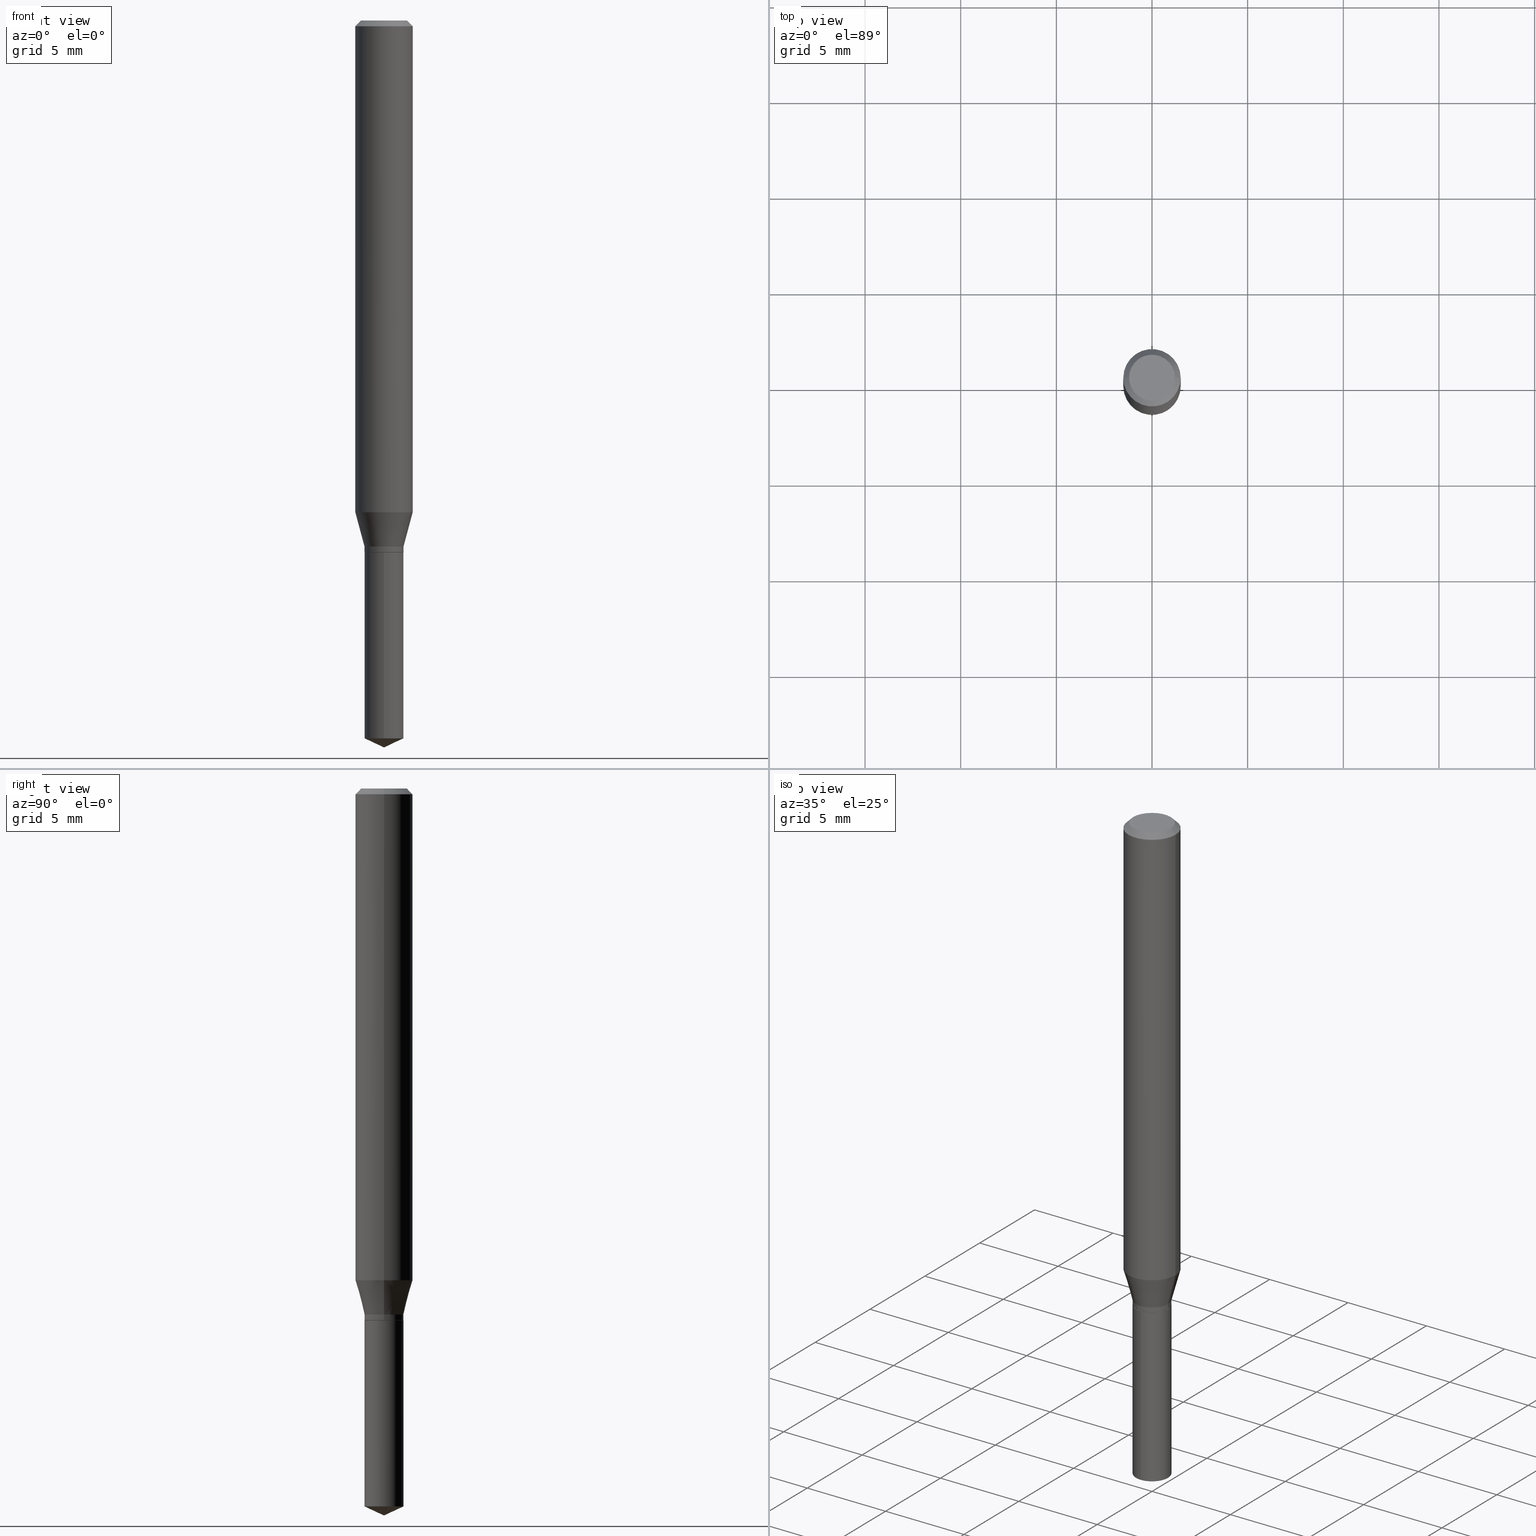
[diagram: canonical four-view strip — front | top / right | iso, engineering-drawing reading convention]
A machine part, canonical four-view strip (front | top / right | iso — engineering-drawing reading convention). The complete STEP part file that produces these views, byte-faithful:
ISO-10303-21;
HEADER;
FILE_DESCRIPTION (( 'STEP AP203' ),
    '1' );
FILE_NAME ('07949.STEP',
    '2024-04-24T07:00:56',
    ( '' ),
    ( '' ),
    'SwSTEP 2.0',
    'SolidWorks 2023',
    '' );
FILE_SCHEMA (( 'CONFIG_CONTROL_DESIGN' ));
ENDSEC;

DATA;
#1 = CC_DESIGN_PERSON_AND_ORGANIZATION_ASSIGNMENT ( #265, #9, ( #440 ) ) ;
#2 = CARTESIAN_POINT ( 'NONE',  ( 2.676565608369631794E-29, -3.821426325363822773E-15, -1.094499999999999806 ) ) ;
#3 = LINE ( 'NONE', #151, #81 ) ;
#4 = DIRECTION ( 'NONE',  ( -2.445458899330790108E-29, 3.491495526022433205E-15, 1.000000000000000000 ) ) ;
#5 = PRODUCT_DEFINITION ( 'UNKNOWN', '', #205, #292 ) ;
#6 = DIRECTION ( 'NONE',  ( -0.2588190451025214611, 5.211531920934550253E-15, 0.9659258262890679791 ) ) ;
#7 = CONICAL_SURFACE ( 'NONE', #229, 84.42940631927426409, 1.134464013796315562 ) ;
#8 = ORIENTED_EDGE ( 'NONE', *, *, #35, .T. ) ;
#9 = PERSON_AND_ORGANIZATION_ROLE ( 'design_owner' ) ;
#10 = EDGE_LOOP ( 'NONE', ( #308, #248 ) ) ;
#11 = DIRECTION ( 'NONE',  ( -0.7071067811865232589, 7.493145998870265808E-15, 0.7071067811865715536 ) ) ;
#12 = ORIENTED_EDGE ( 'NONE', *, *, #158, .F. ) ;
#13 = AXIS2_PLACEMENT_3D ( 'NONE', #235, #193, #118 ) ;
#14 = DIRECTION ( 'NONE',  ( -2.445468806185136597E-29, 3.491481338843145583E-15, 1.000000000000000000 ) ) ;
#15 = CC_DESIGN_PERSON_AND_ORGANIZATION_ASSIGNMENT ( #55, #481, ( #401 ) ) ;
#16 = ORIENTED_EDGE ( 'NONE', *, *, #484, .T. ) ;
#17 = PERSON_AND_ORGANIZATION ( #460, #149 ) ;
#18 = DIRECTION ( 'NONE',  ( 1.000000000000000000, -6.982962677686261189E-15, 0.000000000000000000 ) ) ;
#19 = ORIENTED_EDGE ( 'NONE', *, *, #450, .F. ) ;
#20 = DIRECTION ( 'NONE',  ( 1.000000000000000000, -6.982962677686261189E-15, 0.000000000000000000 ) ) ;
#21 = ADVANCED_FACE ( 'NONE', ( #424 ), #44, .T. ) ;
#22 = DIRECTION ( 'NONE',  ( -2.445468806185136597E-29, 3.491481338843145583E-15, 1.000000000000000000 ) ) ;
#23 = VECTOR ( 'NONE', #11, 39.37007874015748854 ) ;
#24 = ORIENTED_EDGE ( 'NONE', *, *, #259, .T. ) ;
#25 = COORDINATED_UNIVERSAL_TIME_OFFSET ( 5, 0, .BEHIND. ) ;
#26 = DIRECTION ( 'NONE',  ( 0.7071067811865453523, -7.319954787623248157E-15, -0.7071067811865496822 ) ) ;
#27 = LINE ( 'NONE', #97, #216 ) ;
#28 = DIRECTION ( 'NONE',  ( -2.445468806185136597E-29, 3.491481338843145583E-15, 1.000000000000000000 ) ) ;
#29 = EDGE_CURVE ( 'NONE', #459, #395, #189, .T. ) ;
#30 = VECTOR ( 'NONE', #137, 39.37007874015748143 ) ;
#31 = CIRCLE ( 'NONE', #306, 0.04014999999999999819 ) ;
#32 = CC_DESIGN_APPROVAL ( #312, ( #205 ) ) ;
#33 = DIRECTION ( 'NONE',  ( -2.445468806185136597E-29, 3.491481338843145583E-15, 1.000000000000000000 ) ) ;
#34 = DIRECTION ( 'NONE',  ( 1.000000000000000000, -6.982962677686265133E-15, 0.000000000000000000 ) ) ;
#35 = EDGE_CURVE ( 'NONE', #459, #268, #305, .T. ) ;
#36 = DIRECTION ( 'NONE',  ( 6.982962677686265922E-15, 1.000000000000000000, -3.491495526022433599E-15 ) ) ;
#37 = VECTOR ( 'NONE', #246, 39.37007874015748143 ) ;
#38 = CARTESIAN_POINT ( 'NONE',  ( 2.676565608369631794E-29, -3.821426325363822773E-15, -1.094499999999999806 ) ) ;
#39 = APPLICATION_CONTEXT ( 'configuration controlled 3d designs of mechanical parts and assemblies' ) ;
#40 =( CONVERSION_BASED_UNIT ( 'INCH', #304 ) LENGTH_UNIT ( ) NAMED_UNIT ( #98 ) );
#41 = EDGE_CURVE ( 'NONE', #140, #110, #279, .T. ) ;
#42 = COORDINATED_UNIVERSAL_TIME_OFFSET ( 5, 0, .BEHIND. ) ;
#43 = ORIENTED_EDGE ( 'NONE', *, *, #456, .T. ) ;
#44 = CONICAL_SURFACE ( 'NONE', #232, 0.04014999999999999819, 0.2617993877991501850 ) ;
#45 = APPROVAL_STATUS ( 'not_yet_approved' ) ;
#46 = CARTESIAN_POINT ( 'NONE',  ( -2.803659515090768085E-16, -0.04015000000000382152, -1.094499999999999806 ) ) ;
#47 = ORIENTED_EDGE ( 'NONE', *, *, #35, .F. ) ;
#48 = CC_DESIGN_PERSON_AND_ORGANIZATION_ASSIGNMENT ( #350, #164, ( #205 ) ) ;
#49 = ORIENTED_EDGE ( 'NONE', *, *, #389, .T. ) ;
#50 = VERTEX_POINT ( 'NONE', #310 ) ;
#51 = CALENDAR_DATE ( 2024, 24, 4 ) ;
#52 = CARTESIAN_POINT ( 'NONE',  ( 2.676565608369631794E-29, -3.821426325363822773E-15, -1.094499999999999806 ) ) ;
#53 = AXIS2_PLACEMENT_3D ( 'NONE', #403, #370, #182 ) ;
#54 = ORIENTED_EDGE ( 'NONE', *, *, #367, .F. ) ;
#55 = PERSON_AND_ORGANIZATION ( #460, #149 ) ;
#56 = LINE ( 'NONE', #210, #73 ) ;
#57 = ADVANCED_FACE ( 'NONE', ( #267 ), #313, .T. ) ;
#58 = ORIENTED_EDGE ( 'NONE', *, *, #259, .F. ) ;
#59 = APPROVAL_STATUS ( 'not_yet_approved' ) ;
#60 = DIRECTION ( 'NONE',  ( -2.445458899330790108E-29, 3.491495526022433205E-15, 1.000000000000000000 ) ) ;
#61 = ORIENTED_EDGE ( 'NONE', *, *, #389, .F. ) ;
#62 = CARTESIAN_POINT ( 'NONE',  ( 0.04014999999999999819, -4.059894500806808838E-15, -1.082500000000000018 ) ) ;
#63 = AXIS2_PLACEMENT_3D ( 'NONE', #341, #14, #160 ) ;
#64 = FACE_OUTER_BOUND ( 'NONE', #199, .T. ) ;
#65 = EDGE_CURVE ( 'NONE', #245, #395, #317, .T. ) ;
#66 = CYLINDRICAL_SURFACE ( 'NONE', #280, 0.05905000000000006771 ) ;
#67 = CARTESIAN_POINT ( 'NONE',  ( 2.474726981251563190E-29, -3.533254258618144854E-15, -1.011964239736947935 ) ) ;
#68 = AXIS2_PLACEMENT_3D ( 'NONE', #490, #339, #261 ) ;
#69 = PLANE ( 'NONE',  #333 ) ;
#70 = ADVANCED_FACE ( 'NONE', ( #83 ), #142, .T. ) ;
#71 = CYLINDRICAL_SURFACE ( 'NONE', #375, 0.04014999999999999819 ) ;
#72 = DIRECTION ( 'NONE',  ( 1.000000000000000000, -6.982962677686261189E-15, 0.000000000000000000 ) ) ;
#73 = VECTOR ( 'NONE', #217, 39.37007874015748143 ) ;
#74 = CC_DESIGN_DATE_AND_TIME_ASSIGNMENT ( #100, #212, ( #5 ) ) ;
#75 = DIRECTION ( 'NONE',  ( 1.000000000000000000, -6.982962677686261189E-15, 0.000000000000000000 ) ) ;
#76 = DIRECTION ( 'NONE',  ( 1.000000000000000000, 0.000000000000000000, 0.000000000000000000 ) ) ;
#77 = DIRECTION ( 'NONE',  ( -6.982962677686266711E-15, -1.000000000000000000, 3.402052295970439836E-15 ) ) ;
#78 = DIRECTION ( 'NONE',  ( 1.000000000000000000, -6.982962677686267499E-15, 0.000000000000000000 ) ) ;
#79 = CARTESIAN_POINT ( 'NONE',  ( 2.676565608369631794E-29, -3.821426325363822773E-15, -1.094499999999999806 ) ) ;
#80 = CYLINDRICAL_SURFACE ( 'NONE', #233, 0.04014999999999999819 ) ;
#81 = VECTOR ( 'NONE', #6, 39.37007874015748143 ) ;
#82 = LOCAL_TIME ( 3, 0, 56.00000000000000000, #42 ) ;
#83 = FACE_OUTER_BOUND ( 'NONE', #425, .T. ) ;
#84 = EDGE_CURVE ( 'NONE', #215, #268, #352, .T. ) ;
#85 = ORIENTED_EDGE ( 'NONE', *, *, #456, .F. ) ;
#86 = DIRECTION ( 'NONE',  ( 1.000000000000000000, -6.982962677686261189E-15, 0.000000000000000000 ) ) ;
#87 = ORIENTED_EDGE ( 'NONE', *, *, #179, .T. ) ;
#88 = APPROVAL_ROLE ( '' ) ;
#89 = DIRECTION ( 'NONE',  ( -2.445468806185136597E-29, 3.491481338843145583E-15, 1.000000000000000000 ) ) ;
#90 = VERTEX_POINT ( 'NONE', #231 ) ;
#91 = EDGE_CURVE ( 'NONE', #245, #459, #287, .T. ) ;
#92 = CIRCLE ( 'NONE', #68, 0.04014999999999999819 ) ;
#93 = DIRECTION ( 'NONE',  ( 1.000000000000000000, -6.982962677686265922E-15, 4.876176775795935793E-29 ) ) ;
#94 = VECTOR ( 'NONE', #453, 39.37007874015748143 ) ;
#95 = CC_DESIGN_APPROVAL ( #356, ( #401 ) ) ;
#96 = EDGE_LOOP ( 'NONE', ( #345, #43, #201, #61 ) ) ;
#97 = CARTESIAN_POINT ( 'NONE',  ( 2.852829084077068851E-16, 0.04014999999999617486, -1.094500000000000028 ) ) ;
#98 = DIMENSIONAL_EXPONENTS ( 1.000000000000000000, 0.000000000000000000, 0.000000000000000000, 0.000000000000000000, 0.000000000000000000, 0.000000000000000000, 0.000000000000000000 ) ;
#99 = ORIENTED_EDGE ( 'NONE', *, *, #129, .T. ) ;
#100 = DATE_AND_TIME ( #200, #391 ) ;
#101 = CARTESIAN_POINT ( 'NONE',  ( 0.05905000000000000526, -4.463468013801467941E-16, -0.01181000000000007912 ) ) ;
#102 = UNCERTAINTY_MEASURE_WITH_UNIT (LENGTH_MEASURE( 1.000000000000000082E-05 ), #40, 'distance_accuracy_value', 'NONE');
#103 = CARTESIAN_POINT ( 'NONE',  ( 8.265746106709734507E-48, -1.180129479067563789E-33, -3.380025165646692144E-19 ) ) ;
#104 =( GEOMETRIC_REPRESENTATION_CONTEXT ( 3 ) GLOBAL_UNCERTAINTY_ASSIGNED_CONTEXT ( ( #102 ) ) GLOBAL_UNIT_ASSIGNED_CONTEXT ( ( #40, #120, #340 ) ) REPRESENTATION_CONTEXT ( 'NONE', 'WORKASPACE' ) );
#105 = ADVANCED_FACE ( 'NONE', ( #64 ), #406, .T. ) ;
#106 = CYLINDRICAL_SURFACE ( 'NONE', #407, 0.04014999999999999819 ) ;
#107 = VERTEX_POINT ( 'NONE', #398 ) ;
#108 = FACE_OUTER_BOUND ( 'NONE', #330, .T. ) ;
#109 = VECTOR ( 'NONE', #119, 39.37007874015748143 ) ;
#110 = VERTEX_POINT ( 'NONE', #180 ) ;
#111 = DIRECTION ( 'NONE',  ( 1.000000000000000000, -6.982962677686261189E-15, 0.000000000000000000 ) ) ;
#112 = FACE_OUTER_BOUND ( 'NONE', #171, .T. ) ;
#113 = CARTESIAN_POINT ( 'NONE',  ( 0.03964999999999999775, -4.098300795534082706E-15, -1.094499999999999806 ) ) ;
#114 = ORIENTED_EDGE ( 'NONE', *, *, #443, .F. ) ;
#115 = ADVANCED_FACE ( 'NONE', ( #253 ), #361, .T. ) ;
#116 = AXIS2_PLACEMENT_3D ( 'NONE', #436, #278, #93 ) ;
#117 = DIRECTION ( 'NONE',  ( -2.445468806185136597E-29, 3.491481338843145583E-15, 1.000000000000000000 ) ) ;
#118 = DIRECTION ( 'NONE',  ( -6.982962677686266711E-15, -1.000000000000000000, 6.804104591940879672E-15 ) ) ;
#119 = DIRECTION ( 'NONE',  ( -2.445458899330790108E-29, 3.491495526022433599E-15, 1.000000000000000000 ) ) ;
#120 =( NAMED_UNIT ( * ) PLANE_ANGLE_UNIT ( ) SI_UNIT ( $, .RADIAN. ) );
#121 = EDGE_CURVE ( 'NONE', #154, #140, #131, .T. ) ;
#122 = ORIENTED_EDGE ( 'NONE', *, *, #437, .T. ) ;
#123 = CARTESIAN_POINT ( 'NONE',  ( -0.03964999999999999775, -3.539696130634942918E-15, -1.094499999999999806 ) ) ;
#124 = CIRCLE ( 'NONE', #223, 0.03964999999999999775 ) ;
#125 = ORIENTED_EDGE ( 'NONE', *, *, #152, .T. ) ;
#126 = ORIENTED_EDGE ( 'NONE', *, *, #84, .F. ) ;
#127 = APPROVAL_DATE_TIME ( #275, #214 ) ;
#128 = CARTESIAN_POINT ( 'NONE',  ( 2.676565608369631794E-29, -3.821426325363822773E-15, -1.094499999999999806 ) ) ;
#129 = EDGE_CURVE ( 'NONE', #50, #154, #353, .T. ) ;
#130 = EDGE_LOOP ( 'NONE', ( #281, #354, #478 ) ) ;
#131 = LINE ( 'NONE', #101, #133 ) ;
#132 = VERTEX_POINT ( 'NONE', #213 ) ;
#133 = VECTOR ( 'NONE', #26, 39.37007874015748143 ) ;
#134 = CIRCLE ( 'NONE', #263, 0.04014999999999999819 ) ;
#135 = CARTESIAN_POINT ( 'NONE',  ( 2.888098660104665956E-31, -4.123439461173782728E-17, -0.01181000000000007912 ) ) ;
#136 = VERTEX_POINT ( 'NONE', #177 ) ;
#137 = DIRECTION ( 'NONE',  ( -6.328713451373374112E-15, -0.9063077870366490485, 0.4226182617407013287 ) ) ;
#138 = CALENDAR_DATE ( 2024, 24, 4 ) ;
#139 = CC_DESIGN_PERSON_AND_ORGANIZATION_ASSIGNMENT ( #249, #172, ( #205 ) ) ;
#140 = VERTEX_POINT ( 'NONE', #218 ) ;
#141 = DIRECTION ( 'NONE',  ( -2.445458899330790108E-29, 3.491495526022433205E-15, 1.000000000000000000 ) ) ;
#142 = CONICAL_SURFACE ( 'NONE', #240, 0.04014999999999999819, 0.2617993877991501850 ) ;
#143 = AXIS2_PLACEMENT_3D ( 'NONE', #469, #355, #18 ) ;
#144 = DIRECTION ( 'NONE',  ( -6.982962677686266711E-15, -1.000000000000000000, 3.520397390770457025E-15 ) ) ;
#145 = EDGE_CURVE ( 'NONE', #272, #90, #155, .T. ) ;
#146 = CARTESIAN_POINT ( 'NONE',  ( 0.000000000000000000, 0.000000000000000000, 0.000000000000000000 ) ) ;
#147 = DIRECTION ( 'NONE',  ( -2.445468806185136597E-29, 3.491481338843145583E-15, 1.000000000000000000 ) ) ;
#148 = VECTOR ( 'NONE', #196, 39.37007874015748143 ) ;
#149 = ORGANIZATION ( 'UNSPECIFIED', 'UNSPECIFIED', '' ) ;
#150 = DIRECTION ( 'NONE',  ( -6.982962677686266711E-15, -1.000000000000000000, 3.520397390770457025E-15 ) ) ;
#151 = CARTESIAN_POINT ( 'NONE',  ( -0.04014999999999999819, -3.494245640890025145E-15, -1.082500000000000018 ) ) ;
#152 = EDGE_CURVE ( 'NONE', #268, #215, #183, .T. ) ;
#153 = DIRECTION ( 'NONE',  ( -2.445458899330790108E-29, 3.491495526022433205E-15, 1.000000000000000000 ) ) ;
#154 = VERTEX_POINT ( 'NONE', #239 ) ;
#155 = CIRCLE ( 'NONE', #195, 0.05905000000000013016 ) ;
#156 = LOCAL_TIME ( 3, 0, 56.00000000000000000, #358 ) ;
#157 = LINE ( 'NONE', #307, #148 ) ;
#158 = EDGE_CURVE ( 'NONE', #395, #215, #27, .T. ) ;
#159 = DIRECTION ( 'NONE',  ( -6.982962677686266711E-15, -1.000000000000000000, 3.402052295970439836E-15 ) ) ;
#160 = DIRECTION ( 'NONE',  ( 1.000000000000000000, -6.982962677686267499E-15, 0.000000000000000000 ) ) ;
#161 = APPLICATION_PROTOCOL_DEFINITION ( 'international standard', 'config_control_design', 1994, #369 ) ;
#162 = DIRECTION ( 'NONE',  ( -2.445468806185136597E-29, 3.491481338843145583E-15, 1.000000000000000000 ) ) ;
#163 = ORIENTED_EDGE ( 'NONE', *, *, #484, .F. ) ;
#164 = PERSON_AND_ORGANIZATION_ROLE ( 'design_supplier' ) ;
#165 = CONICAL_SURFACE ( 'NONE', #430, 84.42940631927426409, 1.134464013796315562 ) ;
#166 = AXIS2_PLACEMENT_3D ( 'NONE', #423, #117, #377 ) ;
#167 = DIRECTION ( 'NONE',  ( -2.445468806185136597E-29, 3.491481338843145583E-15, 1.000000000000000000 ) ) ;
#168 = CC_DESIGN_PERSON_AND_ORGANIZATION_ASSIGNMENT ( #284, #388, ( #5 ) ) ;
#169 = ORIENTED_EDGE ( 'NONE', *, *, #152, .F. ) ;
#170 = CARTESIAN_POINT ( 'NONE',  ( 0.04014999999999999819, -4.059894500806808838E-15, -1.082500000000000018 ) ) ;
#171 = EDGE_LOOP ( 'NONE', ( #192, #316, #16, #463 ) ) ;
#172 = PERSON_AND_ORGANIZATION_ROLE ( 'creator' ) ;
#173 = DIRECTION ( 'NONE',  ( 2.445468806185136597E-29, -3.491481338843145583E-15, -1.000000000000000000 ) ) ;
#174 = ORIENTED_EDGE ( 'NONE', *, *, #191, .T. ) ;
#175 = AXIS2_PLACEMENT_3D ( 'NONE', #323, #22, #282 ) ;
#176 = CONICAL_SURFACE ( 'NONE', #53, 0.05905000000000000526, 0.7853981633974452814 ) ;
#177 = CARTESIAN_POINT ( 'NONE',  ( 0.03964999999999999775, -4.098300795534082706E-15, -1.094499999999999806 ) ) ;
#178 = CALENDAR_DATE ( 2024, 24, 4 ) ;
#179 = EDGE_CURVE ( 'NONE', #237, #357, #486, .T. ) ;
#180 = CARTESIAN_POINT ( 'NONE',  ( -0.05905000000000000526, -1.367668841148601207E-15, -0.01181000000000007912 ) ) ;
#181 = DIRECTION ( 'NONE',  ( -2.445458899330790108E-29, 3.491495526022433599E-15, 1.000000000000000000 ) ) ;
#182 = DIRECTION ( 'NONE',  ( -1.000000000000000000, 6.982962677686267499E-15, 0.000000000000000000 ) ) ;
#183 = CIRCLE ( 'NONE', #300, 0.04014999999999999819 ) ;
#184 = AXIS2_PLACEMENT_3D ( 'NONE', #416, #347, #76 ) ;
#185 = EDGE_CURVE ( 'NONE', #237, #272, #327, .T. ) ;
#186 = DIRECTION ( 'NONE',  ( -2.445468806185136877E-29, 3.491481338843145188E-15, 1.000000000000000000 ) ) ;
#187 = CARTESIAN_POINT ( 'NONE',  ( 0.000000000000000000, 0.000000000000000000, 0.000000000000000000 ) ) ;
#188 = CARTESIAN_POINT ( 'NONE',  ( -0.04014999999999999819, -3.514321658588372830E-15, -1.093999999999999861 ) ) ;
#189 = CIRCLE ( 'NONE', #13, 0.04014999999999999819 ) ;
#190 = PRODUCT_DEFINITION_SHAPE ( 'NONE', 'NONE',  #5 ) ;
#191 = EDGE_CURVE ( 'NONE', #136, #132, #124, .T. ) ;
#192 = ORIENTED_EDGE ( 'NONE', *, *, #437, .F. ) ;
#193 = DIRECTION ( 'NONE',  ( -2.445458899330790108E-29, 3.491495526022433205E-15, 1.000000000000000000 ) ) ;
#194 = AXIS2_PLACEMENT_3D ( 'NONE', #135, #173, #438 ) ;
#195 = AXIS2_PLACEMENT_3D ( 'NONE', #402, #250, #429 ) ;
#196 = DIRECTION ( 'NONE',  ( -2.445468806185136877E-29, 3.491481338843145188E-15, 1.000000000000000000 ) ) ;
#197 = ORIENTED_EDGE ( 'NONE', *, *, #405, .F. ) ;
#198 = LINE ( 'NONE', #113, #455 ) ;
#199 = EDGE_LOOP ( 'NONE', ( #221, #467, #474, #58 ) ) ;
#200 = CALENDAR_DATE ( 2024, 24, 4 ) ;
#201 = ORIENTED_EDGE ( 'NONE', *, *, #179, .F. ) ;
#202 = CLOSED_SHELL ( 'NONE', ( #57, #105, #303, #21, #115, #346, #70, #336, #383, #399, #238, #299 ) ) ;
#203 = ORIENTED_EDGE ( 'NONE', *, *, #264, .T. ) ;
#204 = VECTOR ( 'NONE', #186, 39.37007874015748143 ) ;
#205 = PRODUCT_DEFINITION_FORMATION_WITH_SPECIFIED_SOURCE ( 'ANY', '', #440, .NOT_KNOWN. ) ;
#206 = DIRECTION ( 'NONE',  ( -2.445468806185136597E-29, 3.491481338843145583E-15, 1.000000000000000000 ) ) ;
#207 = EDGE_CURVE ( 'NONE', #360, #107, #324, .T. ) ;
#208 = EDGE_LOOP ( 'NONE', ( #420, #446, #387, #432 ) ) ;
#209 = DATE_TIME_ROLE ( 'classification_date' ) ;
#210 = CARTESIAN_POINT ( 'NONE',  ( 0.05905000000000006771, -4.123439461173745257E-16, 2.879382386107503723E-30 ) ) ;
#211 = EDGE_LOOP ( 'NONE', ( #241, #325, #169, #47 ) ) ;
#212 = DATE_TIME_ROLE ( 'creation_date' ) ;
#213 = CARTESIAN_POINT ( 'NONE',  ( -0.03964999999999999775, -3.537046903460831717E-15, -1.094499999999999806 ) ) ;
#214 = APPROVAL ( #45, 'UNSPECIFIED' ) ;
#215 = VERTEX_POINT ( 'NONE', #390 ) ;
#216 = VECTOR ( 'NONE', #181, 39.37007874015748143 ) ;
#217 = DIRECTION ( 'NONE',  ( -2.445468806185136877E-29, 3.491481338843145188E-15, 1.000000000000000000 ) ) ;
#218 = CARTESIAN_POINT ( 'NONE',  ( 0.05905000000000000526, -4.535783407291119586E-16, -0.01181000000000007912 ) ) ;
#219 = FACE_OUTER_BOUND ( 'NONE', #384, .T. ) ;
#220 = CC_DESIGN_DATE_AND_TIME_ASSIGNMENT ( #286, #209, ( #401 ) ) ;
#221 = ORIENTED_EDGE ( 'NONE', *, *, #470, .F. ) ;
#222 = CARTESIAN_POINT ( 'NONE',  ( 2.676565608369631794E-29, -3.821426325363822773E-15, -1.094499999999999806 ) ) ;
#223 = AXIS2_PLACEMENT_3D ( 'NONE', #128, #276, #480 ) ;
#224 = EDGE_LOOP ( 'NONE', ( #87, #428, #418, #318 ) ) ;
#225 = CARTESIAN_POINT ( 'NONE',  ( -9.261924752013118283E-28, 1.322368428517963298E-13, 37.87397874015748300 ) ) ;
#226 = DIRECTION ( 'NONE',  ( 1.000000000000000000, -6.982962677686266711E-15, 4.876176775795936353E-29 ) ) ;
#227 = EDGE_CURVE ( 'NONE', #132, #136, #252, .T. ) ;
#228 = FACE_OUTER_BOUND ( 'NONE', #471, .T. ) ;
#229 = AXIS2_PLACEMENT_3D ( 'NONE', #225, #254, #150 ) ;
#230 = APPLICATION_PROTOCOL_DEFINITION ( 'international standard', 'config_control_design', 1994, #39 ) ;
#231 = CARTESIAN_POINT ( 'NONE',  ( -0.05905000000000013016, -3.113678773151804967E-15, -1.011964239736947935 ) ) ;
#232 = AXIS2_PLACEMENT_3D ( 'NONE', #351, #162, #86 ) ;
#233 = AXIS2_PLACEMENT_3D ( 'NONE', #2, #153, #159 ) ;
#234 = FACE_OUTER_BOUND ( 'NONE', #322, .T. ) ;
#235 = CARTESIAN_POINT ( 'NONE',  ( 3.612877403410558045E-29, -5.158242267861175196E-15, -1.477377747525076890 ) ) ;
#236 = EDGE_LOOP ( 'NONE', ( #85, #465, #49, #417 ) ) ;
#237 = VERTEX_POINT ( 'NONE', #62 ) ;
#238 = ADVANCED_FACE ( 'NONE', ( #329 ), #473, .F. ) ;
#239 = CARTESIAN_POINT ( 'NONE',  ( 0.04724000000000000421, -3.852183633974369838E-16, -3.380025165621689721E-19 ) ) ;
#240 = AXIS2_PLACEMENT_3D ( 'NONE', #415, #266, #75 ) ;
#241 = ORIENTED_EDGE ( 'NONE', *, *, #29, .T. ) ;
#242 = APPROVAL_DATE_TIME ( #319, #312 ) ;
#243 = APPROVAL_PERSON_ORGANIZATION ( #385, #214, #380 ) ;
#244 = CARTESIAN_POINT ( 'NONE',  ( 3.658651059288794515E-29, -5.223626456482161457E-15, -1.496099999999999985 ) ) ;
#245 = VERTEX_POINT ( 'NONE', #244 ) ;
#246 = DIRECTION ( 'NONE',  ( -0.7071067811865453523, 2.468850131082234184E-15, -0.7071067811865496822 ) ) ;
#247 = EDGE_CURVE ( 'NONE', #272, #140, #56, .T. ) ;
#248 = ORIENTED_EDGE ( 'NONE', *, *, #227, .F. ) ;
#249 = PERSON_AND_ORGANIZATION ( #460, #149 ) ;
#250 = DIRECTION ( 'NONE',  ( -2.445468806185136597E-29, 3.491481338843145583E-15, 1.000000000000000000 ) ) ;
#251 = PERSON_AND_ORGANIZATION ( #460, #149 ) ;
#252 = CIRCLE ( 'NONE', #477, 0.03964999999999999775 ) ;
#253 = FACE_OUTER_BOUND ( 'NONE', #96, .T. ) ;
#254 = DIRECTION ( 'NONE',  ( -2.445458899330790108E-29, 3.491495526022433205E-15, 1.000000000000000000 ) ) ;
#255 = FACE_OUTER_BOUND ( 'NONE', #236, .T. ) ;
#256 = DIRECTION ( 'NONE',  ( 1.000000000000000000, -6.982962677686266711E-15, 4.876176775795936353E-29 ) ) ;
#257 = AXIS2_PLACEMENT_3D ( 'NONE', #67, #294, #34 ) ;
#258 = DIRECTION ( 'NONE',  ( -6.982962677686266711E-15, -1.000000000000000000, 3.402052295970439836E-15 ) ) ;
#259 = EDGE_CURVE ( 'NONE', #50, #110, #482, .T. ) ;
#260 = DIRECTION ( 'NONE',  ( 1.000000000000000000, -6.982962677686261189E-15, 0.000000000000000000 ) ) ;
#261 = DIRECTION ( 'NONE',  ( -6.982962677686266711E-15, -1.000000000000000000, 6.804104591940879672E-15 ) ) ;
#262 = DIRECTION ( 'NONE',  ( 6.439704144417028775E-15, 0.9063077870366519351, 0.4226182617406950559 ) ) ;
#263 = AXIS2_PLACEMENT_3D ( 'NONE', #396, #404, #72 ) ;
#264 = EDGE_CURVE ( 'NONE', #357, #237, #134, .T. ) ;
#265 = PERSON_AND_ORGANIZATION ( #460, #149 ) ;
#266 = DIRECTION ( 'NONE',  ( -2.445468806185136597E-29, 3.491481338843145583E-15, 1.000000000000000000 ) ) ;
#267 = FACE_OUTER_BOUND ( 'NONE', #348, .T. ) ;
#268 = VERTEX_POINT ( 'NONE', #411 ) ;
#269 = CLOSED_SHELL ( 'NONE', ( #293, #332, #273, #419, #378 ) ) ;
#270 = CIRCLE ( 'NONE', #257, 0.05905000000000013016 ) ;
#271 = ORIENTED_EDGE ( 'NONE', *, *, #185, .T. ) ;
#272 = VERTEX_POINT ( 'NONE', #301 ) ;
#273 = ADVANCED_FACE ( 'NONE', ( #483 ), #165, .T. ) ;
#274 = EDGE_LOOP ( 'NONE', ( #125, #366 ) ) ;
#275 = DATE_AND_TIME ( #138, #82 ) ;
#276 = DIRECTION ( 'NONE',  ( -2.445468806185136597E-29, 3.491481338843145583E-15, 1.000000000000000000 ) ) ;
#277 = ORIENTED_EDGE ( 'NONE', *, *, #247, .T. ) ;
#278 = DIRECTION ( 'NONE',  ( -2.438088387897960049E-29, 3.491481338843145188E-15, 1.000000000000000000 ) ) ;
#279 = CIRCLE ( 'NONE', #63, 0.05905000000000000526 ) ;
#280 = AXIS2_PLACEMENT_3D ( 'NONE', #187, #28, #226 ) ;
#281 = ORIENTED_EDGE ( 'NONE', *, *, #91, .F. ) ;
#282 = DIRECTION ( 'NONE',  ( 1.000000000000000000, -6.982962677686266711E-15, 4.876176775795935232E-29 ) ) ;
#283 = ORIENTED_EDGE ( 'NONE', *, *, #91, .T. ) ;
#284 = PERSON_AND_ORGANIZATION ( #460, #149 ) ;
#285 = DIRECTION ( 'NONE',  ( 1.000000000000000000, -6.982962677686261189E-15, 0.000000000000000000 ) ) ;
#286 = DATE_AND_TIME ( #472, #156 ) ;
#287 = LINE ( 'NONE', #433, #30 ) ;
#288 = VECTOR ( 'NONE', #262, 39.37007874015748854 ) ;
#289 = VECTOR ( 'NONE', #320, 39.37007874015748143 ) ;
#290 = FACE_OUTER_BOUND ( 'NONE', #208, .T. ) ;
#291 = APPROVAL_PERSON_ORGANIZATION ( #251, #356, #88 ) ;
#292 = DESIGN_CONTEXT ( 'detailed design', #39, 'design' ) ;
#293 = ADVANCED_FACE ( 'NONE', ( #444 ), #71, .T. ) ;
#294 = DIRECTION ( 'NONE',  ( -2.445468806185136597E-29, 3.491481338843145583E-15, 1.000000000000000000 ) ) ;
#295 = ORIENTED_EDGE ( 'NONE', *, *, #367, .T. ) ;
#296 = MANIFOLD_SOLID_BREP ( 'Body-Move/Copy2[2]', #202 ) ;
#297 = FACE_OUTER_BOUND ( 'NONE', #274, .T. ) ;
#298 = DIRECTION ( 'NONE',  ( -2.445468806185136597E-29, 3.491481338843145583E-15, 1.000000000000000000 ) ) ;
#299 = ADVANCED_FACE ( 'NONE', ( #112 ), #439, .T. ) ;
#300 = AXIS2_PLACEMENT_3D ( 'NONE', #359, #60, #368 ) ;
#301 = CARTESIAN_POINT ( 'NONE',  ( 0.05905000000000013016, -3.945598204735519774E-15, -1.011964239736947935 ) ) ;
#302 = CARTESIAN_POINT ( 'NONE',  ( 2.888098660104665956E-31, -4.123439461173782728E-17, -0.01181000000000007912 ) ) ;
#303 = ADVANCED_FACE ( 'NONE', ( #290 ), #442, .T. ) ;
#304 = LENGTH_MEASURE_WITH_UNIT ( LENGTH_MEASURE( 0.02539999999999999897 ), #344 );
#305 = LINE ( 'NONE', #46, #109 ) ;
#306 = AXIS2_PLACEMENT_3D ( 'NONE', #448, #147, #111 ) ;
#307 = CARTESIAN_POINT ( 'NONE',  ( -0.04014999999999999819, 2.852829084076802118E-16, -1.974952438737344486E-30 ) ) ;
#308 = ORIENTED_EDGE ( 'NONE', *, *, #191, .F. ) ;
#309 = CARTESIAN_POINT ( 'NONE',  ( -2.803659515090673914E-16, -0.04015000000000516073, -1.477377747525076446 ) ) ;
#310 = CARTESIAN_POINT ( 'NONE',  ( -0.04724000000000000421, 3.504923541997677355E-16, -3.380025165670481712E-19 ) ) ;
#311 = ORIENTED_EDGE ( 'NONE', *, *, #412, .F. ) ;
#312 = APPROVAL ( #59, 'UNSPECIFIED' ) ;
#313 = CONICAL_SURFACE ( 'NONE', #485, 0.03964999999999999775, 0.7853981633974141952 ) ;
#314 = AXIS2_PLACEMENT_3D ( 'NONE', #103, #394, #365 ) ;
#315 = CC_DESIGN_APPROVAL ( #214, ( #5 ) ) ;
#316 = ORIENTED_EDGE ( 'NONE', *, *, #227, .T. ) ;
#317 = LINE ( 'NONE', #462, #288 ) ;
#318 = ORIENTED_EDGE ( 'NONE', *, *, #185, .F. ) ;
#319 = DATE_AND_TIME ( #178, #376 ) ;
#320 = DIRECTION ( 'NONE',  ( 0.2588190451025214611, 1.565188264969620982E-15, 0.9659258262890679791 ) ) ;
#321 = PRODUCT_RELATED_PRODUCT_CATEGORY ( 'detail', '', ( #440 ) ) ;
#322 = EDGE_LOOP ( 'NONE', ( #12, #422, #8, #126 ) ) ;
#323 = CARTESIAN_POINT ( 'NONE',  ( 0.000000000000000000, 0.000000000000000000, 0.000000000000000000 ) ) ;
#324 = CIRCLE ( 'NONE', #400, 0.04014999999999999819 ) ;
#325 = ORIENTED_EDGE ( 'NONE', *, *, #158, .T. ) ;
#326 = SHAPE_DEFINITION_REPRESENTATION ( #190, #410 ) ;
#327 = LINE ( 'NONE', #170, #289 ) ;
#328 = SECURITY_CLASSIFICATION_LEVEL ( 'unclassified' ) ;
#329 = FACE_OUTER_BOUND ( 'NONE', #10, .T. ) ;
#330 = EDGE_LOOP ( 'NONE', ( #99, #363 ) ) ;
#331 = DIRECTION ( 'NONE',  ( 2.445458899330789267E-29, -3.491495526022433599E-15, -1.000000000000000000 ) ) ;
#332 = ADVANCED_FACE ( 'NONE', ( #372 ), #7, .T. ) ;
#333 = AXIS2_PLACEMENT_3D ( 'NONE', #338, #337, #489 ) ;
#334 = CARTESIAN_POINT ( 'NONE',  ( -9.261924752013118283E-28, 1.322368428517963298E-13, 37.87397874015748300 ) ) ;
#335 = CARTESIAN_POINT ( 'NONE',  ( 2.676565608369631794E-29, -3.821426325363822773E-15, -1.094499999999999806 ) ) ;
#336 = ADVANCED_FACE ( 'NONE', ( #228 ), #66, .T. ) ;
#337 = DIRECTION ( 'NONE',  ( 2.438088387897960049E-29, -3.491481338843145188E-15, -1.000000000000000000 ) ) ;
#338 = CARTESIAN_POINT ( 'NONE',  ( 4.132873053354867254E-48, -5.900647395337818946E-34, -1.690012582823346072E-19 ) ) ;
#339 = DIRECTION ( 'NONE',  ( -2.445458899330790108E-29, 3.491495526022433205E-15, 1.000000000000000000 ) ) ;
#340 =( NAMED_UNIT ( * ) SI_UNIT ( $, .STERADIAN. ) SOLID_ANGLE_UNIT ( ) );
#341 = CARTESIAN_POINT ( 'NONE',  ( 2.888098660104665956E-31, -4.123439461173782728E-17, -0.01181000000000007912 ) ) ;
#342 = LINE ( 'NONE', #123, #23 ) ;
#343 = AXIS2_PLACEMENT_3D ( 'NONE', #409, #298, #256 ) ;
#344 =( LENGTH_UNIT ( ) NAMED_UNIT ( * ) SI_UNIT ( $, .METRE. ) );
#345 = ORIENTED_EDGE ( 'NONE', *, *, #405, .T. ) ;
#346 = ADVANCED_FACE ( 'NONE', ( #255 ), #106, .T. ) ;
#347 = DIRECTION ( 'NONE',  ( 0.000000000000000000, 0.000000000000000000, 1.000000000000000000 ) ) ;
#348 = EDGE_LOOP ( 'NONE', ( #174, #122, #197, #163 ) ) ;
#349 = EDGE_LOOP ( 'NONE', ( #397, #283, #311 ) ) ;
#350 = PERSON_AND_ORGANIZATION ( #460, #149 ) ;
#351 = CARTESIAN_POINT ( 'NONE',  ( 2.647219982695410164E-29, -3.779528549297705110E-15, -1.082500000000000018 ) ) ;
#352 = CIRCLE ( 'NONE', #452, 0.04014999999999999819 ) ;
#353 = CIRCLE ( 'NONE', #314, 0.04724000000000000421 ) ;
#354 = ORIENTED_EDGE ( 'NONE', *, *, #65, .T. ) ;
#355 = DIRECTION ( 'NONE',  ( -2.445468806185136597E-29, 3.491481338843145583E-15, 1.000000000000000000 ) ) ;
#356 = APPROVAL ( #393, 'UNSPECIFIED' ) ;
#357 = VERTEX_POINT ( 'NONE', #374 ) ;
#358 = COORDINATED_UNIVERSAL_TIME_OFFSET ( 5, 0, .BEHIND. ) ;
#359 = CARTESIAN_POINT ( 'NONE',  ( 2.676565608369631794E-29, -3.821426325363822773E-15, -1.094499999999999806 ) ) ;
#360 = VERTEX_POINT ( 'NONE', #188 ) ;
#361 = CYLINDRICAL_SURFACE ( 'NONE', #175, 0.04014999999999999819 ) ;
#362 = AXIS2_PLACEMENT_3D ( 'NONE', #302, #413, #78 ) ;
#363 = ORIENTED_EDGE ( 'NONE', *, *, #470, .T. ) ;
#364 = APPROVAL_ROLE ( '' ) ;
#365 = DIRECTION ( 'NONE',  ( 1.000000000000000000, -6.982962677686266711E-15, 4.876185090822587894E-29 ) ) ;
#366 = ORIENTED_EDGE ( 'NONE', *, *, #84, .T. ) ;
#367 = EDGE_CURVE ( 'NONE', #90, #272, #270, .T. ) ;
#368 = DIRECTION ( 'NONE',  ( -6.982962677686266711E-15, -1.000000000000000000, 3.402052295970439836E-15 ) ) ;
#369 = APPLICATION_CONTEXT ( 'configuration controlled 3d designs of mechanical parts and assemblies' ) ;
#370 = DIRECTION ( 'NONE',  ( 2.445468806185136597E-29, -3.491481338843145583E-15, -1.000000000000000000 ) ) ;
#371 = CARTESIAN_POINT ( 'NONE',  ( 0.04014999999999999819, -2.803659515091035804E-16, 1.957784975482067798E-30 ) ) ;
#372 = FACE_OUTER_BOUND ( 'NONE', #130, .T. ) ;
#373 = PLANE ( 'NONE',  #414 ) ;
#374 = CARTESIAN_POINT ( 'NONE',  ( -0.04014999999999999819, -3.514321658588372830E-15, -1.082500000000000018 ) ) ;
#375 = AXIS2_PLACEMENT_3D ( 'NONE', #38, #141, #258 ) ;
#376 = LOCAL_TIME ( 3, 0, 56.00000000000000000, #468 ) ;
#377 = DIRECTION ( 'NONE',  ( 1.000000000000000000, -6.982962677686266711E-15, 4.876185090822587894E-29 ) ) ;
#378 = ADVANCED_FACE ( 'NONE', ( #297 ), #373, .F. ) ;
#379 = CARTESIAN_POINT ( 'NONE',  ( 2.676565608369631794E-29, -3.821426325363822773E-15, -1.094499999999999806 ) ) ;
#380 = APPROVAL_ROLE ( '' ) ;
#381 = ORIENTED_EDGE ( 'NONE', *, *, #450, .T. ) ;
#382 = AXIS2_PLACEMENT_3D ( 'NONE', #335, #488, #260 ) ;
#383 = ADVANCED_FACE ( 'NONE', ( #219 ), #176, .T. ) ;
#384 = EDGE_LOOP ( 'NONE', ( #434, #386, #24, #381 ) ) ;
#385 = PERSON_AND_ORGANIZATION ( #460, #149 ) ;
#386 = ORIENTED_EDGE ( 'NONE', *, *, #129, .F. ) ;
#387 = ORIENTED_EDGE ( 'NONE', *, *, #41, .F. ) ;
#388 = PERSON_AND_ORGANIZATION_ROLE ( 'creator' ) ;
#389 = EDGE_CURVE ( 'NONE', #107, #237, #487, .T. ) ;
#390 = CARTESIAN_POINT ( 'NONE',  ( 2.852829084077163515E-16, 0.04014999999999617486, -1.094500000000000028 ) ) ;
#391 = LOCAL_TIME ( 3, 0, 56.00000000000000000, #25 ) ;
#392 = ORIENTED_EDGE ( 'NONE', *, *, #479, .F. ) ;
#393 = APPROVAL_STATUS ( 'not_yet_approved' ) ;
#394 = DIRECTION ( 'NONE',  ( -2.445468806185136597E-29, 3.491481338843145583E-15, 1.000000000000000000 ) ) ;
#395 = VERTEX_POINT ( 'NONE', #445 ) ;
#396 = CARTESIAN_POINT ( 'NONE',  ( 2.647219982695410164E-29, -3.779528549297705110E-15, -1.082500000000000018 ) ) ;
#397 = ORIENTED_EDGE ( 'NONE', *, *, #65, .F. ) ;
#398 = CARTESIAN_POINT ( 'NONE',  ( 0.04014999999999999819, -4.100046536203504209E-15, -1.093999999999999861 ) ) ;
#399 = ADVANCED_FACE ( 'NONE', ( #108 ), #69, .F. ) ;
#400 = AXIS2_PLACEMENT_3D ( 'NONE', #427, #89, #285 ) ;
#401 = SECURITY_CLASSIFICATION ( '', '', #328 ) ;
#402 = CARTESIAN_POINT ( 'NONE',  ( 2.474726981251563190E-29, -3.533254258618144854E-15, -1.011964239736947935 ) ) ;
#403 = CARTESIAN_POINT ( 'NONE',  ( 2.888098660104665956E-31, -4.123439461173782728E-17, -0.01181000000000007912 ) ) ;
#404 = DIRECTION ( 'NONE',  ( -2.445468806185136597E-29, 3.491481338843145583E-15, 1.000000000000000000 ) ) ;
#405 = EDGE_CURVE ( 'NONE', #107, #360, #31, .T. ) ;
#406 = CONICAL_SURFACE ( 'NONE', #194, 0.05905000000000000526, 0.7853981633974452814 ) ;
#407 = AXIS2_PLACEMENT_3D ( 'NONE', #146, #33, #449 ) ;
#408 = DIRECTION ( 'NONE',  ( -2.445458899330790108E-29, 3.491495526022433205E-15, 1.000000000000000000 ) ) ;
#409 = CARTESIAN_POINT ( 'NONE',  ( 0.000000000000000000, 0.000000000000000000, 0.000000000000000000 ) ) ;
#410 = ADVANCED_BREP_SHAPE_REPRESENTATION ( '07949', ( #458, #296, #184 ), #104 ) ;
#411 = CARTESIAN_POINT ( 'NONE',  ( -2.803659515090768085E-16, -0.04015000000000382152, -1.094499999999999806 ) ) ;
#412 = EDGE_CURVE ( 'NONE', #395, #459, #92, .T. ) ;
#413 = DIRECTION ( 'NONE',  ( -2.445468806185136597E-29, 3.491481338843145583E-15, 1.000000000000000000 ) ) ;
#414 = AXIS2_PLACEMENT_3D ( 'NONE', #222, #331, #36 ) ;
#415 = CARTESIAN_POINT ( 'NONE',  ( 2.647219982695410164E-29, -3.779528549297705110E-15, -1.082500000000000018 ) ) ;
#416 = CARTESIAN_POINT ( 'NONE',  ( 0.000000000000000000, 0.000000000000000000, 0.000000000000000000 ) ) ;
#417 = ORIENTED_EDGE ( 'NONE', *, *, #264, .F. ) ;
#418 = ORIENTED_EDGE ( 'NONE', *, *, #145, .F. ) ;
#419 = ADVANCED_FACE ( 'NONE', ( #234 ), #80, .T. ) ;
#420 = ORIENTED_EDGE ( 'NONE', *, *, #145, .T. ) ;
#421 = CIRCLE ( 'NONE', #166, 0.04724000000000000421 ) ;
#422 = ORIENTED_EDGE ( 'NONE', *, *, #412, .T. ) ;
#423 = CARTESIAN_POINT ( 'NONE',  ( 8.265746106709734507E-48, -1.180129479067563789E-33, -3.380025165646692144E-19 ) ) ;
#424 = FACE_OUTER_BOUND ( 'NONE', #224, .T. ) ;
#425 = EDGE_LOOP ( 'NONE', ( #114, #203, #271, #54 ) ) ;
#426 = APPROVAL_DATE_TIME ( #475, #356 ) ;
#427 = CARTESIAN_POINT ( 'NONE',  ( 2.675342873966538993E-29, -3.819680584694400481E-15, -1.093999999999999861 ) ) ;
#428 = ORIENTED_EDGE ( 'NONE', *, *, #443, .T. ) ;
#429 = DIRECTION ( 'NONE',  ( 1.000000000000000000, -6.982962677686265133E-15, 0.000000000000000000 ) ) ;
#430 = AXIS2_PLACEMENT_3D ( 'NONE', #334, #408, #144 ) ;
#431 = APPROVAL_PERSON_ORGANIZATION ( #17, #312, #364 ) ;
#432 = ORIENTED_EDGE ( 'NONE', *, *, #247, .F. ) ;
#433 = CARTESIAN_POINT ( 'NONE',  ( 3.658651059288795076E-29, -5.223626456482161457E-15, -1.496099999999999985 ) ) ;
#434 = ORIENTED_EDGE ( 'NONE', *, *, #121, .F. ) ;
#435 = COORDINATED_UNIVERSAL_TIME_OFFSET ( 5, 0, .BEHIND. ) ;
#436 = CARTESIAN_POINT ( 'NONE',  ( 2.676565608369631794E-29, -3.821426325363822773E-15, -1.094499999999999806 ) ) ;
#437 = EDGE_CURVE ( 'NONE', #132, #360, #342, .T. ) ;
#438 = DIRECTION ( 'NONE',  ( -1.000000000000000000, 6.982962677686267499E-15, 0.000000000000000000 ) ) ;
#439 = CONICAL_SURFACE ( 'NONE', #382, 0.03964999999999999775, 0.7853981633974141952 ) ;
#440 = PRODUCT ( '07949', '07949', '', ( #464 ) ) ;
#441 = LOCAL_TIME ( 3, 0, 56.00000000000000000, #435 ) ;
#442 = CYLINDRICAL_SURFACE ( 'NONE', #343, 0.05905000000000006771 ) ;
#443 = EDGE_CURVE ( 'NONE', #357, #90, #3, .T. ) ;
#444 = FACE_OUTER_BOUND ( 'NONE', #211, .T. ) ;
#445 = CARTESIAN_POINT ( 'NONE',  ( 2.852829084077163515E-16, 0.04014999999999484259, -1.477377747525077112 ) ) ;
#446 = ORIENTED_EDGE ( 'NONE', *, *, #479, .T. ) ;
#447 = CIRCLE ( 'NONE', #362, 0.05905000000000000526 ) ;
#448 = CARTESIAN_POINT ( 'NONE',  ( 2.675342873966538993E-29, -3.819680584694400481E-15, -1.093999999999999861 ) ) ;
#449 = DIRECTION ( 'NONE',  ( 1.000000000000000000, -6.982962677686266711E-15, 4.876176775795935232E-29 ) ) ;
#450 = EDGE_CURVE ( 'NONE', #110, #140, #447, .T. ) ;
#451 = CARTESIAN_POINT ( 'NONE',  ( -0.05905000000000006771, 4.195754854663396409E-16, -2.904631170795525045E-30 ) ) ;
#452 = AXIS2_PLACEMENT_3D ( 'NONE', #379, #4, #77 ) ;
#453 = DIRECTION ( 'NONE',  ( -2.445468806185136877E-29, 3.491481338843145188E-15, 1.000000000000000000 ) ) ;
#454 = DIRECTION ( 'NONE',  ( 1.000000000000000000, -6.982962677686261189E-15, 0.000000000000000000 ) ) ;
#455 = VECTOR ( 'NONE', #457, 39.37007874015748854 ) ;
#456 = EDGE_CURVE ( 'NONE', #360, #357, #157, .T. ) ;
#457 = DIRECTION ( 'NONE',  ( 0.7071067811865232589, -2.468850131082003836E-15, 0.7071067811865715536 ) ) ;
#458 = MANIFOLD_SOLID_BREP ( 'Body-Move/Copy2[1]', #269 ) ;
#459 = VERTEX_POINT ( 'NONE', #309 ) ;
#460 = PERSON ( 'UNSPECIFIED', 'UNSPECIFIED', 'UNSPECIFIED', ('UNSPECIFIED'), ('UNSPECIFIED'), ('UNSPECIFIED') ) ;
#461 = LINE ( 'NONE', #451, #94 ) ;
#462 = CARTESIAN_POINT ( 'NONE',  ( 3.658672935554494692E-29, -5.223595400746700193E-15, -1.496099999999999985 ) ) ;
#463 = ORIENTED_EDGE ( 'NONE', *, *, #207, .F. ) ;
#464 = MECHANICAL_CONTEXT ( 'NONE', #369, 'mechanical' ) ;
#465 = ORIENTED_EDGE ( 'NONE', *, *, #207, .T. ) ;
#466 = CC_DESIGN_SECURITY_CLASSIFICATION ( #401, ( #205 ) ) ;
#467 = ORIENTED_EDGE ( 'NONE', *, *, #121, .T. ) ;
#468 = COORDINATED_UNIVERSAL_TIME_OFFSET ( 5, 0, .BEHIND. ) ;
#469 = CARTESIAN_POINT ( 'NONE',  ( 2.647219982695410164E-29, -3.779528549297705110E-15, -1.082500000000000018 ) ) ;
#470 = EDGE_CURVE ( 'NONE', #154, #50, #421, .T. ) ;
#471 = EDGE_LOOP ( 'NONE', ( #392, #295, #277, #19 ) ) ;
#472 = CALENDAR_DATE ( 2024, 24, 4 ) ;
#473 = PLANE ( 'NONE',  #116 ) ;
#474 = ORIENTED_EDGE ( 'NONE', *, *, #41, .T. ) ;
#475 = DATE_AND_TIME ( #51, #441 ) ;
#476 = CARTESIAN_POINT ( 'NONE',  ( -0.05905000000000000526, 3.711095515056362547E-16, -0.01181000000000007912 ) ) ;
#477 = AXIS2_PLACEMENT_3D ( 'NONE', #52, #206, #20 ) ;
#478 = ORIENTED_EDGE ( 'NONE', *, *, #29, .F. ) ;
#479 = EDGE_CURVE ( 'NONE', #90, #110, #461, .T. ) ;
#480 = DIRECTION ( 'NONE',  ( 1.000000000000000000, -6.982962677686261189E-15, 0.000000000000000000 ) ) ;
#481 = PERSON_AND_ORGANIZATION_ROLE ( 'classification_officer' ) ;
#482 = LINE ( 'NONE', #476, #37 ) ;
#483 = FACE_OUTER_BOUND ( 'NONE', #349, .T. ) ;
#484 = EDGE_CURVE ( 'NONE', #136, #107, #198, .T. ) ;
#485 = AXIS2_PLACEMENT_3D ( 'NONE', #79, #167, #454 ) ;
#486 = CIRCLE ( 'NONE', #143, 0.04014999999999999819 ) ;
#487 = LINE ( 'NONE', #371, #204 ) ;
#488 = DIRECTION ( 'NONE',  ( -2.445468806185136597E-29, 3.491481338843145583E-15, 1.000000000000000000 ) ) ;
#489 = DIRECTION ( 'NONE',  ( -1.000000000000000000, 6.982962677686265922E-15, -4.876176775795935793E-29 ) ) ;
#490 = CARTESIAN_POINT ( 'NONE',  ( 3.612877403410558045E-29, -5.158242267861175196E-15, -1.477377747525076890 ) ) ;
ENDSEC;
END-ISO-10303-21;
